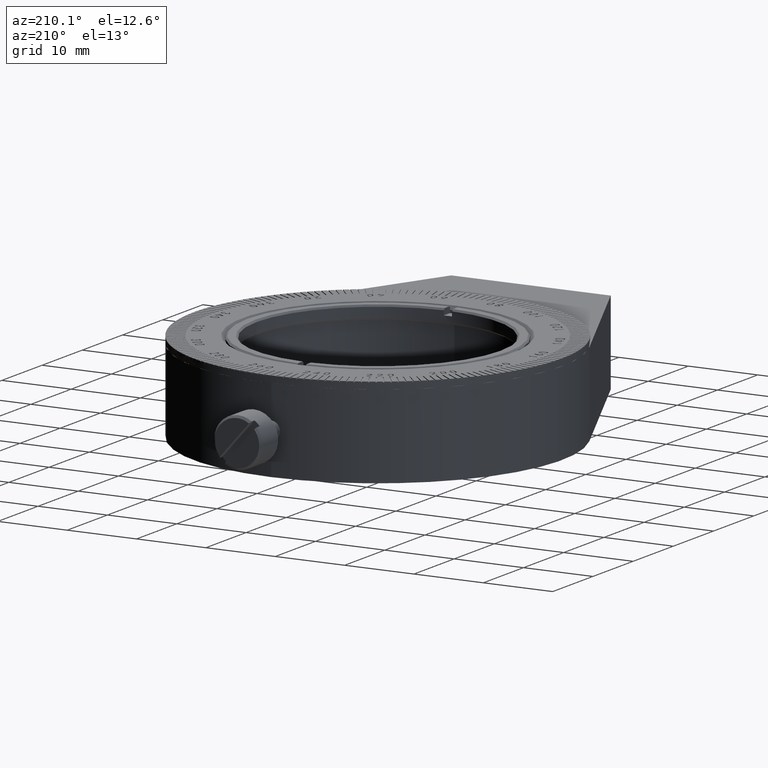
[diagram: clean part render]
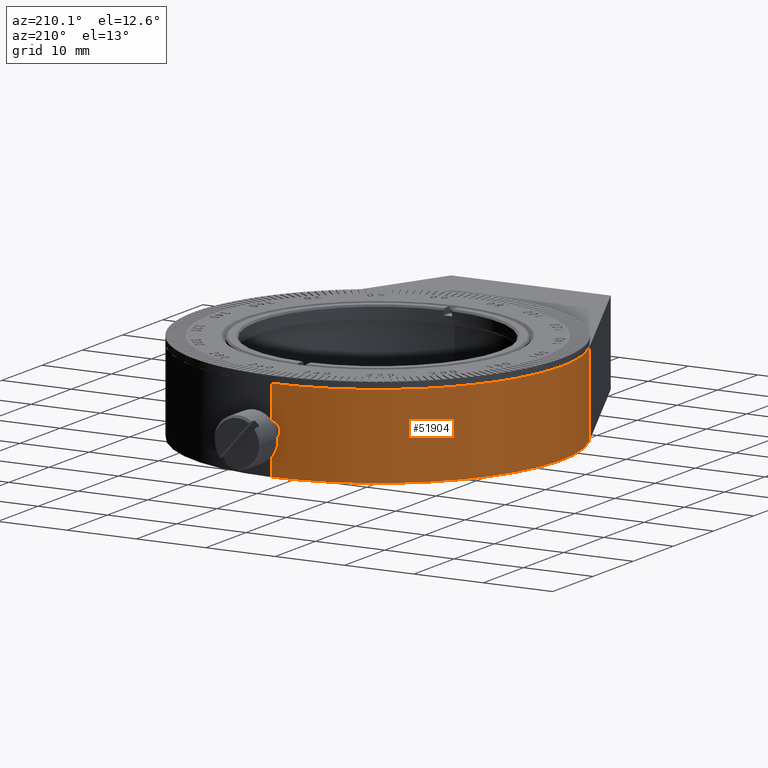
[diagram: same view with one face highlighted and labeled with its STEP entity id]
A machine part, auxiliary view. The second image highlights one B-rep face of the part: STEP entity #51904.
In plain terms, the highlighted cylindrical surface (partial cylindrical patch) has radius 26.5 mm, axis along (-0, -0, -1).
Its self-contained STEP definition (entity closure, byte-faithful):
#633 = DIRECTION ( 'NONE',  ( 0.000000000000000000, 1.000000000000000000, -1.309225264888156130E-16 ) ) ;
#933 = DIRECTION ( 'NONE',  ( 0.000000000000000000, 1.000000000000000000, -1.309225264888156130E-16 ) ) ;
#5046 = DIRECTION ( 'NONE',  ( -0.000000000000000000, -1.224646799147353207E-16, -1.000000000000000000 ) ) ;
#5614 = AXIS2_PLACEMENT_3D ( 'NONE', #32398, #47227, #24177 ) ;
#5670 = EDGE_CURVE ( 'NONE', #55347, #25795, #62452, .T. ) ;
#6501 = LINE ( 'NONE', #26679, #9797 ) ;
#6521 = CARTESIAN_POINT ( 'NONE',  ( -0.2681977790133680539, 26.49893331622443071, 6.998363625662006093 ) ) ;
#7032 = EDGE_CURVE ( 'NONE', #35321, #55347, #14784, .T. ) ;
#7903 = ORIENTED_EDGE ( 'NONE', *, *, #5670, .T. ) ;
#8027 = EDGE_CURVE ( 'NONE', #23078, #49266, #25473, .T. ) ;
#9797 = VECTOR ( 'NONE', #11850, 1000.000000000000000 ) ;
#10928 = EDGE_CURVE ( 'NONE', #14402, #49266, #40617, .T. ) ;
#11551 = CARTESIAN_POINT ( 'NONE',  ( -0.5361026715219729954, 26.49525086798621132, 5.086399761493352045 ) ) ;
#11850 = DIRECTION ( 'NONE',  ( -0.000000000000000000, -1.224646799147353207E-16, -1.000000000000000000 ) ) ;
#14402 = VERTEX_POINT ( 'NONE', #60234 ) ;
#14784 = B_SPLINE_CURVE_WITH_KNOTS ( 'NONE', 3,
 ( #25751, #54447, #6521, #49106, #49411, #44991, #55088, #40254, #39943, #40887, #54144, #11551, #44680, #35831 ),
 .UNSPECIFIED., .F., .F.,
 ( 4, 2, 2, 2, 2, 2, 4 ),
 ( -0.001601360313856220550, -0.001201019998971901512, -0.0008006796840875825836, 9.456810532142839731E-10, 0.0004003412605653716011, 0.0008006815754496893374, 0.001601362205218323509 ),
 .UNSPECIFIED. ) ;
#14935 = VECTOR ( 'NONE', #24881, 1000.000000000000000 ) ;
#15541 = AXIS2_PLACEMENT_3D ( 'NONE', #25208, #5046, #933 ) ;
#20005 = ORIENTED_EDGE ( 'NONE', *, *, #20863, .T. ) ;
#20863 = EDGE_CURVE ( 'NONE', #23078, #35321, #6501, .T. ) ;
#21113 = CARTESIAN_POINT ( 'NONE',  ( 0.000000000000000000, 1.469576158976824144E-15, 12.00000000000000000 ) ) ;
#23078 = VERTEX_POINT ( 'NONE', #28286 ) ;
#23259 = ORIENTED_EDGE ( 'NONE', *, *, #8027, .F. ) ;
#24177 = DIRECTION ( 'NONE',  ( 0.000000000000000000, 1.000000000000000000, -1.224646799147353207E-16 ) ) ;
#24881 = DIRECTION ( 'NONE',  ( -0.000000000000000000, -1.224646799147353207E-16, -1.000000000000000000 ) ) ;
#25042 = EDGE_CURVE ( 'NONE', #25795, #14402, #32817, .T. ) ;
#25208 = CARTESIAN_POINT ( 'NONE',  ( 0.000000000000000000, 1.469576158976824144E-15, 12.00000000000000000 ) ) ;
#25473 = CIRCLE ( 'NONE', #60741, 26.50000000000000355 ) ;
#25751 = CARTESIAN_POINT ( 'NONE',  ( 2.387290121296612019E-13, 26.50000000000000355, 7.024999999999992362 ) ) ;
#25795 = VERTEX_POINT ( 'NONE', #37931 ) ;
#26679 = CARTESIAN_POINT ( 'NONE',  ( 0.000000000000000000, 26.50000000000000355, 11.99999999999999645 ) ) ;
#28286 = CARTESIAN_POINT ( 'NONE',  ( 0.000000000000000000, 26.50000000000000355, 11.99999999999999645 ) ) ;
#29060 = ORIENTED_EDGE ( 'NONE', *, *, #25042, .T. ) ;
#32398 = CARTESIAN_POINT ( 'NONE',  ( 0.000000000000000000, 1.925929944387235853E-31, 0.000000000000000000 ) ) ;
#32817 = CIRCLE ( 'NONE', #5614, 26.50000000000000355 ) ;
#34673 = FACE_OUTER_BOUND ( 'NONE', #38026, .T. ) ;
#34982 = CYLINDRICAL_SURFACE ( 'NONE', #15541, 26.50000000000000355 ) ;
#35321 = VERTEX_POINT ( 'NONE', #54999 ) ;
#35831 = CARTESIAN_POINT ( 'NONE',  ( 0.000000000000000000, 26.50000000000000355, 4.975000000000002309 ) ) ;
#37931 = CARTESIAN_POINT ( 'NONE',  ( 0.000000000000000000, 26.50000000000000355, -3.245314017740486159E-15 ) ) ;
#38026 = EDGE_LOOP ( 'NONE', ( #23259, #20005, #59931, #7903, #29060, #56329 ) ) ;
#39351 = CARTESIAN_POINT ( 'NONE',  ( -24.02631552150645788, -11.17972103681564455, 12.00000000000000178 ) ) ;
#39943 = CARTESIAN_POINT ( 'NONE',  ( -0.9983634368747331678, 26.48123704113751486, 5.731801608187825359 ) ) ;
#40254 = CARTESIAN_POINT ( 'NONE',  ( -1.024999999999995026, 26.48016946698038510, 5.864630892870106749 ) ) ;
#40617 = LINE ( 'NONE', #59863, #50633 ) ;
#40887 = CARTESIAN_POINT ( 'NONE',  ( -0.8955742603222238696, 26.48491252629033710, 5.483660311706269219 ) ) ;
#43842 = DIRECTION ( 'NONE',  ( 0.000000000000000000, 1.224646799147353207E-16, 1.000000000000000000 ) ) ;
#44680 = CARTESIAN_POINT ( 'NONE',  ( -0.2707378923452587460, 26.50000000000000711, 4.975000000000002309 ) ) ;
#44991 = CARTESIAN_POINT ( 'NONE',  ( -0.9136004902272941708, 26.48492230591796215, 6.536102403142427519 ) ) ;
#47227 = DIRECTION ( 'NONE',  ( 0.000000000000000000, 1.224646799147353207E-16, 1.000000000000000000 ) ) ;
#48246 = CARTESIAN_POINT ( 'NONE',  ( 0.000000000000000000, 26.50000000000000355, 11.99999999999999645 ) ) ;
#49106 = CARTESIAN_POINT ( 'NONE',  ( -0.5163394534579607287, 26.49525977444228175, 6.895574422655885272 ) ) ;
#49266 = VERTEX_POINT ( 'NONE', #39351 ) ;
#49411 = CARTESIAN_POINT ( 'NONE',  ( -0.6299907347583376671, 26.49267928175031628, 6.819511033921021870 ) ) ;
#50404 = DIRECTION ( 'NONE',  ( 4.684219598640822308E-17, 2.179621271564215315E-17, 1.000000000000000000 ) ) ;
#50633 = VECTOR ( 'NONE', #50404, 1000.000000000000000 ) ;
#51904 = ADVANCED_FACE ( 'NONE', ( #34673 ), #34982, .T. ) ;
#53152 = CARTESIAN_POINT ( 'NONE',  ( 0.000000000000000000, 26.50000000000000355, 4.975000000000002309 ) ) ;
#54144 = CARTESIAN_POINT ( 'NONE',  ( -0.8195109481562736775, 26.48749389738176419, 5.370009187840727449 ) ) ;
#54447 = CARTESIAN_POINT ( 'NONE',  ( -0.1353692655065992234, 26.50000000000001066, 7.025000000000025224 ) ) ;
#54999 = CARTESIAN_POINT ( 'NONE',  ( 2.387290121296612019E-13, 26.50000000000000355, 7.024999999999992362 ) ) ;
#55088 = CARTESIAN_POINT ( 'NONE',  ( -1.024999999999995026, 26.48016946698038865, 6.270738214259778509 ) ) ;
#55347 = VERTEX_POINT ( 'NONE', #53152 ) ;
#56329 = ORIENTED_EDGE ( 'NONE', *, *, #10928, .T. ) ;
#59863 = CARTESIAN_POINT ( 'NONE',  ( -24.02631552150645433, -11.17972103681564278, 12.00000000000000178 ) ) ;
#59931 = ORIENTED_EDGE ( 'NONE', *, *, #7032, .T. ) ;
#60234 = CARTESIAN_POINT ( 'NONE',  ( -24.02631552150645433, -11.17972103681564455, 1.551922217143234083E-15 ) ) ;
#60741 = AXIS2_PLACEMENT_3D ( 'NONE', #21113, #43842, #633 ) ;
#62452 = LINE ( 'NONE', #48246, #14935 ) ;